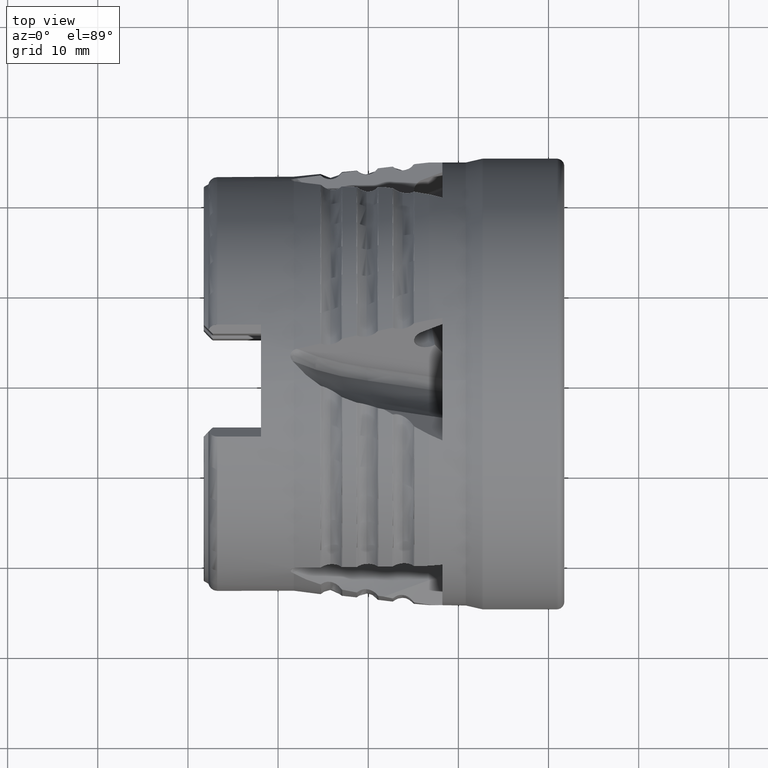
[diagram: clean part render]
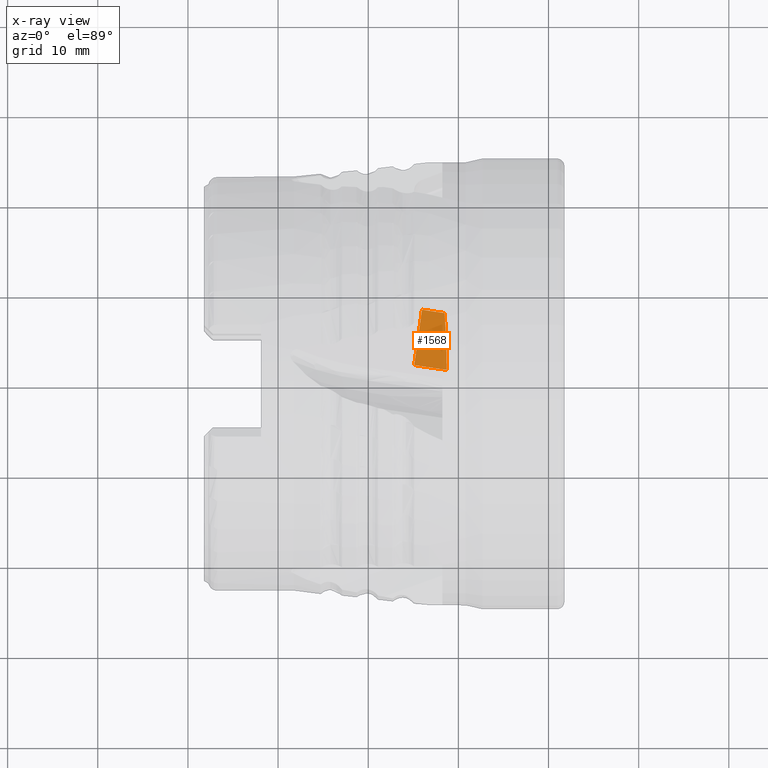
[diagram: x-ray — body ghosted, one internal face saturated and labeled with its STEP entity id]
A machine part, top view, then the same camera in x-ray: the body is ghosted and one INTERNAL B-rep face — a face not visible from any outside direction — is saturated and labeled: STEP entity #1568.
In plain terms, the highlighted planar face has unit normal (0.4023, -0.0565, 0.9138).
Its self-contained STEP definition (entity closure, byte-faithful):
#1568 = ADVANCED_FACE ( 'NONE', ( #7889 ), #11232, .T. ) ;
#2788 = AXIS2_PLACEMENT_3D ( 'NONE', #11233, #11229, #11228 ) ;
#3026 = CARTESIAN_POINT ( 'NONE',  ( -4.102576655691557100, 7.196911027333413800, -25.44420200701193100 ) ) ;
#3037 = DIRECTION ( 'NONE',  ( -0.9048800670977104100, 0.1271725999354713400, 0.4062255457192419600 ) ) ;
#4247 = EDGE_CURVE ( 'NONE', #12053, #11606, #12334, .T. ) ;
#4250 = EDGE_CURVE ( 'NONE', #11620, #12009, #10072, .T. ) ;
#4352 = EDGE_CURVE ( 'NONE', #12053, #12009, #10182, .T. ) ;
#4709 = EDGE_CURVE ( 'NONE', #11620, #11606, #10415, .T. ) ;
#5847 = CARTESIAN_POINT ( 'NONE',  ( -11.51803747159916300, 8.239086080103970000, -22.11519772651821500 ) ) ;
#5855 = CARTESIAN_POINT ( 'NONE',  ( -11.37409769483893400, 6.145698283372590600, -22.30808379190447600 ) ) ;
#5856 = CARTESIAN_POINT ( 'NONE',  ( -11.29246132492927900, 4.047778214009152700, -22.47382230867154700 ) ) ;
#5857 = CARTESIAN_POINT ( 'NONE',  ( -11.28058535441876700, 1.944783411738151900, -22.60916403126457700 ) ) ;
#5862 = CARTESIAN_POINT ( 'NONE',  ( -14.73455399015231200, 3.642000133862381500, -20.98360817022077600 ) ) ;
#5863 = DIRECTION ( 'NONE',  ( 0.1391731009600688800, 0.9902680687415698100, 2.393918396847993300E-016 ) ) ;
#6430 = ORIENTED_EDGE ( 'NONE', *, *, #4352, .T. ) ;
#6433 = ORIENTED_EDGE ( 'NONE', *, *, #4250, .F. ) ;
#6438 = ORIENTED_EDGE ( 'NONE', *, *, #4709, .T. ) ;
#6749 = ORIENTED_EDGE ( 'NONE', *, *, #4247, .F. ) ;
#7889 = FACE_OUTER_BOUND ( 'NONE', #12723, .T. ) ;
#8682 = CARTESIAN_POINT ( 'NONE',  ( -9.812833441282967000, 1.738504332730008300, -23.26807822727107900 ) ) ;
#8683 = DIRECTION ( 'NONE',  ( 0.9048800670977102900, -0.1271725999354713100, -0.4062255457192419100 ) ) ;
#9279 = CARTESIAN_POINT ( 'NONE',  ( -11.28058535441876700, 1.944783411738151900, -22.60916403126457700 ) ) ;
#9291 = CARTESIAN_POINT ( 'NONE',  ( -14.90156171130439400, 2.453678451372493200, -20.98360817022077600 ) ) ;
#9559 = CARTESIAN_POINT ( 'NONE',  ( -14.03868848535196700, 8.593340477570228200, -20.98360817022077600 ) ) ;
#9603 = CARTESIAN_POINT ( 'NONE',  ( -11.51803747159916300, 8.239086080103970000, -22.11519772651821500 ) ) ;
#10072 = LINE ( 'NONE', #5862, #10073 ) ;
#10073 = VECTOR ( 'NONE', #5863, 1000.000000000000100 ) ;
#10176 = VECTOR ( 'NONE', #3037, 999.9999999999998900 ) ;
#10182 = LINE ( 'NONE', #3026, #10176 ) ;
#10415 = LINE ( 'NONE', #8682, #10420 ) ;
#10420 = VECTOR ( 'NONE', #8683, 1000.000000000000100 ) ;
#11228 = DIRECTION ( 'NONE',  ( 0.9152366894439766300, 0.0000000000000000000, -0.4029166195326644400 ) ) ;
#11229 = DIRECTION ( 'NONE',  ( 0.4022721866328839400, -0.05653566888694334200, 0.9137728415777655000 ) ) ;
#11232 = PLANE ( 'NONE',  #2788 ) ;
#11233 = CARTESIAN_POINT ( 'NONE',  ( -9.645825720130885000, 2.926826015219896200, -23.26807822727107900 ) ) ;
#11606 = VERTEX_POINT ( 'NONE', #9279 ) ;
#11620 = VERTEX_POINT ( 'NONE', #9291 ) ;
#12009 = VERTEX_POINT ( 'NONE', #9559 ) ;
#12053 = VERTEX_POINT ( 'NONE', #9603 ) ;
#12334 = B_SPLINE_CURVE_WITH_KNOTS ( 'NONE', 3,
 ( #5847, #5855, #5856, #5857 ),
 .UNSPECIFIED., .F., .F.,
 ( 4, 4 ),
 ( 0.0003566394024621312300, 0.006674756981989354000 ),
 .UNSPECIFIED. ) ;
#12723 = EDGE_LOOP ( 'NONE', ( #6749, #6430, #6433, #6438 ) ) ;